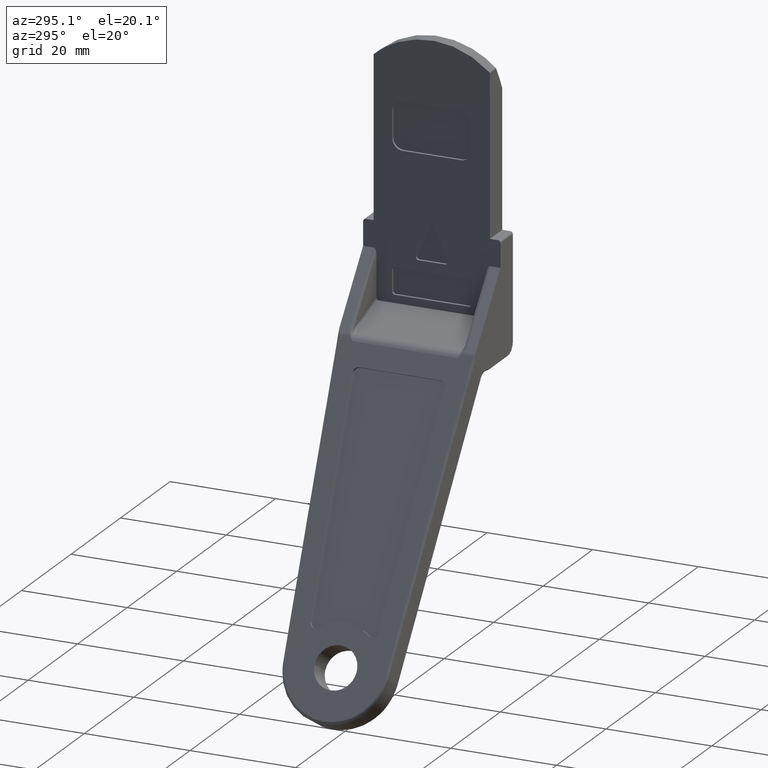
[diagram: clean part render]
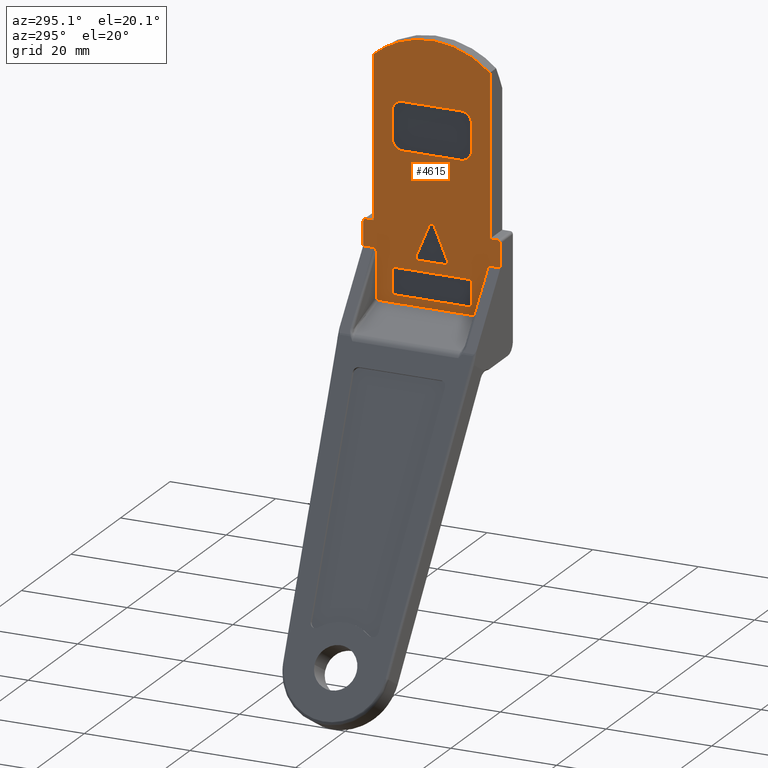
[diagram: same view with one face highlighted and labeled with its STEP entity id]
A machine part, auxiliary view. The second image highlights one B-rep face of the part: STEP entity #4615.
In plain terms, the highlighted face is a freeform B-spline surface patch.
Its self-contained STEP definition (entity closure, byte-faithful):
#1157=CARTESIAN_POINT('',(-5.000000000000091,-12.500000000000000,-18.0));
#1158=VERTEX_POINT('',#1157);
#1164=CARTESIAN_POINT('',(-5.000000000000091,-13.0,-18.500000000000000));
#1165=VERTEX_POINT('',#1164);
#1166=CARTESIAN_POINT('',(-5.000000000000091,-13.0,-18.500000000000000));
#1167=CARTESIAN_POINT('',(-5.000000000000091,-13.000000000000004,-18.000000000000007));
#1168=CARTESIAN_POINT('',(-5.000000000000091,-12.500000000000000,-18.0));
#1176=(BOUNDED_CURVE()B_SPLINE_CURVE(2,(#1166,#1167,#1168),.UNSPECIFIED.,.F.,.U.)CURVE()GEOMETRIC_REPRESENTATION_ITEM()QUASI_UNIFORM_CURVE()RATIONAL_B_SPLINE_CURVE((1.0,0.707106781186548,1.0))REPRESENTATION_ITEM(''));
#1177=EDGE_CURVE('',#1165,#1158,#1176,.T.);
#1218=CARTESIAN_POINT('',(-5.000000000000091,13.0,-18.500000000000000));
#1219=VERTEX_POINT('',#1218);
#1225=CARTESIAN_POINT('',(-5.000000000000091,12.500000000000000,-18.0));
#1226=VERTEX_POINT('',#1225);
#1227=CARTESIAN_POINT('',(-5.000000000000120,12.500000000000000,-18.0));
#1228=CARTESIAN_POINT('',(-5.000000000000121,13.000000000000004,-18.000000000000007));
#1229=CARTESIAN_POINT('',(-5.000000000000120,13.0,-18.500000000000000));
#1237=(BOUNDED_CURVE()B_SPLINE_CURVE(2,(#1227,#1228,#1229),.UNSPECIFIED.,.F.,.U.)CURVE()GEOMETRIC_REPRESENTATION_ITEM()QUASI_UNIFORM_CURVE()RATIONAL_B_SPLINE_CURVE((1.0,0.707106781186548,1.0))REPRESENTATION_ITEM(''));
#1238=EDGE_CURVE('',#1226,#1219,#1237,.T.);
#1587=CARTESIAN_POINT('',(-5.000000000000091,-10.500000000000000,-23.793043774218798));
#1588=VERTEX_POINT('',#1587);
#1589=CARTESIAN_POINT('',(-5.000000000000091,-11.0,-23.0));
#1590=VERTEX_POINT('',#1589);
#1591=CARTESIAN_POINT('',(-5.000000000000091,-10.500000000000000,-23.793043774218798));
#1592=CARTESIAN_POINT('',(-5.000000000000091,-10.500000035731727,-22.999999999999986));
#1593=CARTESIAN_POINT('',(-5.000000000000091,-11.0,-22.999999999999989));
#1601=(BOUNDED_CURVE()B_SPLINE_CURVE(2,(#1591,#1592,#1593),.UNSPECIFIED.,.F.,.U.)CURVE()GEOMETRIC_REPRESENTATION_ITEM()QUASI_UNIFORM_CURVE()RATIONAL_B_SPLINE_CURVE((1.0,0.707106806452695,1.0))REPRESENTATION_ITEM(''));
#1602=EDGE_CURVE('',#1588,#1590,#1601,.T.);
#1959=CARTESIAN_POINT('',(-5.000000000000091,11.0,-23.0));
#1960=VERTEX_POINT('',#1959);
#1961=CARTESIAN_POINT('',(-5.000000000000091,10.500000000000000,-23.793043774218798));
#1962=VERTEX_POINT('',#1961);
#1963=CARTESIAN_POINT('',(-5.000000000000091,11.0,-23.0));
#1964=CARTESIAN_POINT('',(-5.000000000000081,10.499999964268275,-23.000000116386634));
#1965=CARTESIAN_POINT('',(-5.000000000000091,10.500000000000000,-23.793043774218798));
#1973=(BOUNDED_CURVE()B_SPLINE_CURVE(2,(#1963,#1964,#1965),.UNSPECIFIED.,.F.,.U.)CURVE()GEOMETRIC_REPRESENTATION_ITEM()QUASI_UNIFORM_CURVE()RATIONAL_B_SPLINE_CURVE((1.0,0.707106807807688,1.0))REPRESENTATION_ITEM(''));
#1974=EDGE_CURVE('',#1960,#1962,#1973,.T.);
#2055=CARTESIAN_POINT('',(-5.000000000000091,10.500000000000000,-31.976007212626751));
#2056=VERTEX_POINT('',#2055);
#2064=CARTESIAN_POINT('',(-5.000000000000091,10.0,-32.500000000000000));
#2065=VERTEX_POINT('',#2064);
#2071=CARTESIAN_POINT('',(-5.000000000000091,10.500000000000000,-31.976007212626751));
#2072=CARTESIAN_POINT('',(-5.000000000000092,10.500000000000000,-32.500000000000071));
#2073=CARTESIAN_POINT('',(-5.000000000000091,10.0,-32.500000000000078));
#2081=(BOUNDED_CURVE()B_SPLINE_CURVE(2,(#2071,#2072,#2073),.UNSPECIFIED.,.F.,.U.)CURVE()GEOMETRIC_REPRESENTATION_ITEM()QUASI_UNIFORM_CURVE()RATIONAL_B_SPLINE_CURVE((1.0,0.707106781186548,1.0))REPRESENTATION_ITEM(''));
#2082=EDGE_CURVE('',#2056,#2065,#2081,.T.);
#2154=CARTESIAN_POINT('',(-5.000000000000091,-10.500000000000000,-31.976007212626751));
#2155=VERTEX_POINT('',#2154);
#2161=CARTESIAN_POINT('',(-5.000000000000091,-10.0,-32.500000000000000));
#2162=VERTEX_POINT('',#2161);
#2163=CARTESIAN_POINT('',(-5.000000000000091,-10.0,-32.500000000000000));
#2164=CARTESIAN_POINT('',(-5.000000000000091,-10.207106591745346,-32.500000116297173));
#2165=CARTESIAN_POINT('',(-5.000000000000091,-10.353553295872670,-32.346526165137057));
#2166=CARTESIAN_POINT('',(-5.000000000000091,-10.500000000000002,-32.193052213976969));
#2167=CARTESIAN_POINT('',(-5.000000000000091,-10.500000000000000,-31.976007212626751));
#2175=(BOUNDED_CURVE()B_SPLINE_CURVE(2,(#2163,#2164,#2165,#2166,#2167),.UNSPECIFIED.,.F.,.U.)B_SPLINE_CURVE_WITH_KNOTS((3,2,3),(0.0,0.500000000000000,1.0),.UNSPECIFIED.)CURVE()GEOMETRIC_REPRESENTATION_ITEM()RATIONAL_B_SPLINE_CURVE((1.0,0.923879481248866,1.0,0.923879481248866,1.0))REPRESENTATION_ITEM(''));
#2176=EDGE_CURVE('',#2162,#2155,#2175,.T.);
#2296=CARTESIAN_POINT('',(-5.000000000000120,7.500000000000000,-2.500000000000085));
#2297=VERTEX_POINT('',#2296);
#2298=CARTESIAN_POINT('',(-5.000000000000120,5.500000000000000,-4.500000000000090));
#2299=VERTEX_POINT('',#2298);
#2300=CARTESIAN_POINT('',(-5.000000000000120,7.500000000000000,-2.500000000000085));
#2301=CARTESIAN_POINT('',(-5.000000000000121,7.500000000000000,-4.500000000000085));
#2302=CARTESIAN_POINT('',(-5.000000000000120,5.500000000000000,-4.500000000000085));
#2310=(BOUNDED_CURVE()B_SPLINE_CURVE(2,(#2300,#2301,#2302),.UNSPECIFIED.,.F.,.U.)CURVE()GEOMETRIC_REPRESENTATION_ITEM()QUASI_UNIFORM_CURVE()RATIONAL_B_SPLINE_CURVE((1.0,0.707106781186548,1.0))REPRESENTATION_ITEM(''));
#2311=EDGE_CURVE('',#2297,#2299,#2310,.T.);
#2332=CARTESIAN_POINT('',(-5.000000000000120,-5.500000000000000,-4.500000000000090));
#2333=VERTEX_POINT('',#2332);
#2334=CARTESIAN_POINT('',(-5.000000000000120,-5.500000000000000,-4.500000000000090));
#2335=CARTESIAN_POINT('',(-5.000000000000120,5.500000000000000,-4.500000000000090));
#2336=QUASI_UNIFORM_CURVE('',1,(#2334,#2335),.UNSPECIFIED.,.F.,.U.);
#2337=EDGE_CURVE('',#2333,#2299,#2336,.T.);
#2363=CARTESIAN_POINT('',(-5.000000000000120,-7.500000000000000,-2.500000000000085));
#2364=VERTEX_POINT('',#2363);
#2365=CARTESIAN_POINT('',(-5.000000000000120,-5.500000000000000,-4.500000000000085));
#2366=CARTESIAN_POINT('',(-5.000000000000121,-7.500000000000000,-4.500000000000085));
#2367=CARTESIAN_POINT('',(-5.000000000000120,-7.500000000000000,-2.500000000000085));
#2375=(BOUNDED_CURVE()B_SPLINE_CURVE(2,(#2365,#2366,#2367),.UNSPECIFIED.,.F.,.U.)CURVE()GEOMETRIC_REPRESENTATION_ITEM()QUASI_UNIFORM_CURVE()RATIONAL_B_SPLINE_CURVE((1.0,0.707106781186548,1.0))REPRESENTATION_ITEM(''));
#2376=EDGE_CURVE('',#2333,#2364,#2375,.T.);
#2393=CARTESIAN_POINT('',(-5.000000000000120,-7.500000000000000,2.500000000000000));
#2394=VERTEX_POINT('',#2393);
#2395=CARTESIAN_POINT('',(-5.000000000000120,-7.500000000000000,2.500000000000000));
#2396=CARTESIAN_POINT('',(-5.000000000000120,-7.500000000000000,-2.500000000000085));
#2397=QUASI_UNIFORM_CURVE('',1,(#2395,#2396),.UNSPECIFIED.,.F.,.U.);
#2398=EDGE_CURVE('',#2394,#2364,#2397,.T.);
#2424=CARTESIAN_POINT('',(-5.000000000000120,-5.500000000000000,4.500000000000000));
#2425=VERTEX_POINT('',#2424);
#2426=CARTESIAN_POINT('',(-5.000000000000120,-7.500000000000000,2.500000000000000));
#2427=CARTESIAN_POINT('',(-5.000000000000121,-7.500000000000000,4.500000000000002));
#2428=CARTESIAN_POINT('',(-5.000000000000120,-5.500000000000000,4.500000000000001));
#2436=(BOUNDED_CURVE()B_SPLINE_CURVE(2,(#2426,#2427,#2428),.UNSPECIFIED.,.F.,.U.)CURVE()GEOMETRIC_REPRESENTATION_ITEM()QUASI_UNIFORM_CURVE()RATIONAL_B_SPLINE_CURVE((1.0,0.707106781186548,1.0))REPRESENTATION_ITEM(''));
#2437=EDGE_CURVE('',#2394,#2425,#2436,.T.);
#2454=CARTESIAN_POINT('',(-5.000000000000120,5.500000000000000,4.500000000000000));
#2455=VERTEX_POINT('',#2454);
#2456=CARTESIAN_POINT('',(-5.000000000000120,5.500000000000000,4.500000000000000));
#2457=CARTESIAN_POINT('',(-5.000000000000120,-5.500000000000000,4.500000000000000));
#2458=QUASI_UNIFORM_CURVE('',1,(#2456,#2457),.UNSPECIFIED.,.F.,.U.);
#2459=EDGE_CURVE('',#2455,#2425,#2458,.T.);
#2485=CARTESIAN_POINT('',(-5.000000000000120,7.500000000000000,2.500000000000000));
#2486=VERTEX_POINT('',#2485);
#2487=CARTESIAN_POINT('',(-5.000000000000120,5.500000000000000,4.500000000000001));
#2488=CARTESIAN_POINT('',(-5.000000000000121,7.500000000000000,4.500000000000002));
#2489=CARTESIAN_POINT('',(-5.000000000000120,7.500000000000000,2.500000000000000));
#2497=(BOUNDED_CURVE()B_SPLINE_CURVE(2,(#2487,#2488,#2489),.UNSPECIFIED.,.F.,.U.)CURVE()GEOMETRIC_REPRESENTATION_ITEM()QUASI_UNIFORM_CURVE()RATIONAL_B_SPLINE_CURVE((1.0,0.707106781186548,1.0))REPRESENTATION_ITEM(''));
#2498=EDGE_CURVE('',#2455,#2486,#2497,.T.);
#2515=CARTESIAN_POINT('',(-5.000000000000120,7.500000000000000,-2.500000000000085));
#2516=CARTESIAN_POINT('',(-5.000000000000120,7.500000000000000,2.500000000000000));
#2517=QUASI_UNIFORM_CURVE('',1,(#2515,#2516),.UNSPECIFIED.,.F.,.U.);
#2518=EDGE_CURVE('',#2297,#2486,#2517,.T.);
#2624=CARTESIAN_POINT('',(-5.000000000000120,-0.461538461364064,-17.307692307273751));
#2625=VERTEX_POINT('',#2624);
#2626=CARTESIAN_POINT('',(-5.000000000000120,0.461538999999988,-17.307692000000099));
#2627=VERTEX_POINT('',#2626);
#2628=CARTESIAN_POINT('',(-5.000000000000120,-0.461538461364063,-17.307692307273751));
#2629=CARTESIAN_POINT('',(-5.000000000000121,-0.333333343626608,-17.000000025489822));
#2630=CARTESIAN_POINT('',(-5.000000000000120,-0.000000038234729,-17.0));
#2631=CARTESIAN_POINT('',(-5.000000000000121,0.333333267157150,-16.999999974510189));
#2632=CARTESIAN_POINT('',(-5.000000000000120,0.461538999999988,-17.307692000000099));
#2640=(BOUNDED_CURVE()B_SPLINE_CURVE(2,(#2628,#2629,#2630,#2631,#2632),.UNSPECIFIED.,.F.,.U.)B_SPLINE_CURVE_WITH_KNOTS((3,2,3),(0.0,0.500000000000000,1.0),.UNSPECIFIED.)CURVE()GEOMETRIC_REPRESENTATION_ITEM()RATIONAL_B_SPLINE_CURVE((1.0,0.832050315798177,1.0,0.832050315798177,1.0))REPRESENTATION_ITEM(''));
#2641=EDGE_CURVE('',#2625,#2627,#2640,.T.);
#2662=CARTESIAN_POINT('',(-5.000000000000120,2.961538461364065,-23.307692307273850));
#2663=VERTEX_POINT('',#2662);
#2664=CARTESIAN_POINT('',(-5.000000000000120,2.961538461364065,-23.307692307273850));
#2665=CARTESIAN_POINT('',(-5.000000000000120,0.461538999999988,-17.307692000000099));
#2666=QUASI_UNIFORM_CURVE('',1,(#2664,#2665),.UNSPECIFIED.,.F.,.U.);
#2667=EDGE_CURVE('',#2663,#2627,#2666,.T.);
#2693=CARTESIAN_POINT('',(-5.000000000000120,2.500000000000000,-24.0));
#2694=VERTEX_POINT('',#2693);
#2695=CARTESIAN_POINT('',(-5.000000000000120,2.961538461364099,-23.307692307273840));
#2696=CARTESIAN_POINT('',(-5.000000000000120,3.064458415199518,-23.554700195848028));
#2697=CARTESIAN_POINT('',(-5.000000000000120,2.916025147294657,-23.777350097924010));
#2698=CARTESIAN_POINT('',(-5.000000000000120,2.767591879389797,-24.000000000000004));
#2699=CARTESIAN_POINT('',(-5.000000000000120,2.500000000000000,-24.0));
#2707=(BOUNDED_CURVE()B_SPLINE_CURVE(2,(#2695,#2696,#2697,#2698,#2699),.UNSPECIFIED.,.F.,.U.)B_SPLINE_CURVE_WITH_KNOTS((3,2,3),(0.0,0.500000000000000,1.0),.UNSPECIFIED.)CURVE()GEOMETRIC_REPRESENTATION_ITEM()RATIONAL_B_SPLINE_CURVE((1.0,0.881674598660987,1.0,0.881674598660987,1.0))REPRESENTATION_ITEM(''));
#2708=EDGE_CURVE('',#2663,#2694,#2707,.T.);
#2725=CARTESIAN_POINT('',(-5.000000000000120,-2.500000000000000,-24.0));
#2726=VERTEX_POINT('',#2725);
#2727=CARTESIAN_POINT('',(-5.000000000000120,-2.500000000000000,-24.0));
#2728=CARTESIAN_POINT('',(-5.000000000000120,2.500000000000000,-24.0));
#2729=QUASI_UNIFORM_CURVE('',1,(#2727,#2728),.UNSPECIFIED.,.F.,.U.);
#2730=EDGE_CURVE('',#2726,#2694,#2729,.T.);
#2756=CARTESIAN_POINT('',(-5.000000000000120,-2.961538461364080,-23.307692307273850));
#2757=VERTEX_POINT('',#2756);
#2758=CARTESIAN_POINT('',(-5.000000000000120,-2.500000000000000,-24.0));
#2759=CARTESIAN_POINT('',(-5.000000000000120,-2.767591879389795,-23.999999999999996));
#2760=CARTESIAN_POINT('',(-5.000000000000120,-2.916025147294656,-23.777350097924010));
#2761=CARTESIAN_POINT('',(-5.000000000000120,-3.064458415199516,-23.554700195848032));
#2762=CARTESIAN_POINT('',(-5.000000000000120,-2.961538461364101,-23.307692307273840));
#2770=(BOUNDED_CURVE()B_SPLINE_CURVE(2,(#2758,#2759,#2760,#2761,#2762),.UNSPECIFIED.,.F.,.U.)B_SPLINE_CURVE_WITH_KNOTS((3,2,3),(0.0,0.500000000000000,1.0),.UNSPECIFIED.)CURVE()GEOMETRIC_REPRESENTATION_ITEM()RATIONAL_B_SPLINE_CURVE((1.0,0.881674598660988,1.0,0.881674598660988,1.0))REPRESENTATION_ITEM(''));
#2771=EDGE_CURVE('',#2726,#2757,#2770,.T.);
#2788=CARTESIAN_POINT('',(-5.000000000000120,-0.461538461364064,-17.307692307273751));
#2789=CARTESIAN_POINT('',(-5.000000000000120,-2.961538461364080,-23.307692307273850));
#2790=QUASI_UNIFORM_CURVE('',1,(#2788,#2789),.UNSPECIFIED.,.F.,.U.);
#2791=EDGE_CURVE('',#2625,#2757,#2790,.T.);
#2909=CARTESIAN_POINT('',(-5.000000000000120,-7.500000000000000,-26.500000000000000));
#2910=VERTEX_POINT('',#2909);
#2911=CARTESIAN_POINT('',(-5.000000000000120,-7.0,-26.0));
#2912=VERTEX_POINT('',#2911);
#2913=CARTESIAN_POINT('',(-5.000000000000120,-7.500000000000000,-26.500000000000000));
#2914=CARTESIAN_POINT('',(-5.000000000000121,-7.500000000000000,-26.000000000000004));
#2915=CARTESIAN_POINT('',(-5.000000000000120,-7.0,-26.0));
#2923=(BOUNDED_CURVE()B_SPLINE_CURVE(2,(#2913,#2914,#2915),.UNSPECIFIED.,.F.,.U.)CURVE()GEOMETRIC_REPRESENTATION_ITEM()QUASI_UNIFORM_CURVE()RATIONAL_B_SPLINE_CURVE((1.0,0.707106781186548,1.0))REPRESENTATION_ITEM(''));
#2924=EDGE_CURVE('',#2910,#2912,#2923,.T.);
#2945=CARTESIAN_POINT('',(-5.000000000000120,-7.500000000000000,-30.500000000000000));
#2946=VERTEX_POINT('',#2945);
#2947=CARTESIAN_POINT('',(-5.000000000000120,-7.500000000000000,-30.500000000000000));
#2948=CARTESIAN_POINT('',(-5.000000000000120,-7.500000000000000,-26.500000000000000));
#2949=QUASI_UNIFORM_CURVE('',1,(#2947,#2948),.UNSPECIFIED.,.F.,.U.);
#2950=EDGE_CURVE('',#2946,#2910,#2949,.T.);
#2976=CARTESIAN_POINT('',(-5.000000000000120,-7.0,-31.0));
#2977=VERTEX_POINT('',#2976);
#2978=CARTESIAN_POINT('',(-5.000000000000120,-7.0,-31.0));
#2979=CARTESIAN_POINT('',(-5.000000000000121,-7.500000000000000,-31.000000000000007));
#2980=CARTESIAN_POINT('',(-5.000000000000120,-7.500000000000000,-30.500000000000000));
#2988=(BOUNDED_CURVE()B_SPLINE_CURVE(2,(#2978,#2979,#2980),.UNSPECIFIED.,.F.,.U.)CURVE()GEOMETRIC_REPRESENTATION_ITEM()QUASI_UNIFORM_CURVE()RATIONAL_B_SPLINE_CURVE((1.0,0.707106781186548,1.0))REPRESENTATION_ITEM(''));
#2989=EDGE_CURVE('',#2977,#2946,#2988,.T.);
#3006=CARTESIAN_POINT('',(-5.000000000000120,7.0,-31.0));
#3007=VERTEX_POINT('',#3006);
#3008=CARTESIAN_POINT('',(-5.000000000000120,7.0,-31.0));
#3009=CARTESIAN_POINT('',(-5.000000000000120,-7.0,-31.0));
#3010=QUASI_UNIFORM_CURVE('',1,(#3008,#3009),.UNSPECIFIED.,.F.,.U.);
#3011=EDGE_CURVE('',#3007,#2977,#3010,.T.);
#3037=CARTESIAN_POINT('',(-5.000000000000120,7.500000000000000,-30.500000000000000));
#3038=VERTEX_POINT('',#3037);
#3039=CARTESIAN_POINT('',(-5.000000000000120,7.500000000000000,-30.500000000000000));
#3040=CARTESIAN_POINT('',(-5.000000000000121,7.500000000000000,-31.000000000000007));
#3041=CARTESIAN_POINT('',(-5.000000000000120,7.0,-31.0));
#3049=(BOUNDED_CURVE()B_SPLINE_CURVE(2,(#3039,#3040,#3041),.UNSPECIFIED.,.F.,.U.)CURVE()GEOMETRIC_REPRESENTATION_ITEM()QUASI_UNIFORM_CURVE()RATIONAL_B_SPLINE_CURVE((1.0,0.707106781186548,1.0))REPRESENTATION_ITEM(''));
#3050=EDGE_CURVE('',#3038,#3007,#3049,.T.);
#3067=CARTESIAN_POINT('',(-5.000000000000120,7.500000000000000,-26.500000000000000));
#3068=VERTEX_POINT('',#3067);
#3069=CARTESIAN_POINT('',(-5.000000000000120,7.500000000000000,-26.500000000000000));
#3070=CARTESIAN_POINT('',(-5.000000000000120,7.500000000000000,-30.500000000000000));
#3071=QUASI_UNIFORM_CURVE('',1,(#3069,#3070),.UNSPECIFIED.,.F.,.U.);
#3072=EDGE_CURVE('',#3068,#3038,#3071,.T.);
#3098=CARTESIAN_POINT('',(-5.000000000000120,7.0,-26.0));
#3099=VERTEX_POINT('',#3098);
#3100=CARTESIAN_POINT('',(-5.000000000000120,7.0,-26.0));
#3101=CARTESIAN_POINT('',(-5.000000000000121,7.500000000000000,-26.000000000000004));
#3102=CARTESIAN_POINT('',(-5.000000000000120,7.500000000000000,-26.500000000000000));
#3110=(BOUNDED_CURVE()B_SPLINE_CURVE(2,(#3100,#3101,#3102),.UNSPECIFIED.,.F.,.U.)CURVE()GEOMETRIC_REPRESENTATION_ITEM()QUASI_UNIFORM_CURVE()RATIONAL_B_SPLINE_CURVE((1.0,0.707106781186548,1.0))REPRESENTATION_ITEM(''));
#3111=EDGE_CURVE('',#3099,#3068,#3110,.T.);
#3128=CARTESIAN_POINT('',(-5.000000000000120,-7.0,-26.0));
#3129=CARTESIAN_POINT('',(-5.000000000000120,7.0,-26.0));
#3130=QUASI_UNIFORM_CURVE('',1,(#3128,#3129),.UNSPECIFIED.,.F.,.U.);
#3131=EDGE_CURVE('',#2912,#3099,#3130,.T.);
#4032=CARTESIAN_POINT('',(-5.000000000000091,10.0,-32.500000000000000));
#4033=CARTESIAN_POINT('',(-5.000000000000091,-10.0,-32.500000000000000));
#4034=QUASI_UNIFORM_CURVE('',1,(#4032,#4033),.UNSPECIFIED.,.F.,.U.);
#4035=EDGE_CURVE('',#2065,#2162,#4034,.T.);
#4048=CARTESIAN_POINT('',(-5.000000000000091,-10.500000000000000,-23.793043774218798));
#4049=CARTESIAN_POINT('',(-5.000000000000091,-10.500000000000000,-31.976007212626751));
#4050=QUASI_UNIFORM_CURVE('',1,(#4048,#4049),.UNSPECIFIED.,.F.,.U.);
#4051=EDGE_CURVE('',#1588,#2155,#4050,.T.);
#4061=CARTESIAN_POINT('',(-5.000000000000091,10.500000000000000,-23.793043774218798));
#4062=CARTESIAN_POINT('',(-5.000000000000091,10.500000000000000,-31.976007212626751));
#4063=QUASI_UNIFORM_CURVE('',1,(#4061,#4062),.UNSPECIFIED.,.F.,.U.);
#4064=EDGE_CURVE('',#1962,#2056,#4063,.T.);
#4084=CARTESIAN_POINT('',(-5.000000000000120,11.0,-18.0));
#4085=VERTEX_POINT('',#4084);
#4091=CARTESIAN_POINT('',(-5.000000000000120,11.0,12.298373876248821));
#4092=VERTEX_POINT('',#4091);
#4093=CARTESIAN_POINT('',(-5.000000000000120,11.0,12.298373876248821));
#4094=CARTESIAN_POINT('',(-5.000000000000120,11.0,-18.0));
#4095=QUASI_UNIFORM_CURVE('',1,(#4093,#4094),.UNSPECIFIED.,.F.,.U.);
#4096=EDGE_CURVE('',#4092,#4085,#4095,.T.);
#4112=CARTESIAN_POINT('',(-5.000000000000120,-11.0,12.298373876248821));
#4113=VERTEX_POINT('',#4112);
#4119=CARTESIAN_POINT('',(-5.000000000000120,-11.0,-18.0));
#4120=VERTEX_POINT('',#4119);
#4121=CARTESIAN_POINT('',(-5.000000000000120,-11.0,-18.0));
#4122=CARTESIAN_POINT('',(-5.000000000000120,-11.0,12.298373876248821));
#4123=QUASI_UNIFORM_CURVE('',1,(#4121,#4122),.UNSPECIFIED.,.F.,.U.);
#4124=EDGE_CURVE('',#4120,#4113,#4123,.T.);
#4146=CARTESIAN_POINT('',(-5.000000000000091,-12.500000000000000,-18.0));
#4147=CARTESIAN_POINT('',(-5.000000000000120,-11.0,-18.0));
#4148=QUASI_UNIFORM_CURVE('',1,(#4146,#4147),.UNSPECIFIED.,.F.,.U.);
#4149=EDGE_CURVE('',#1158,#4120,#4148,.T.);
#4172=CARTESIAN_POINT('',(-5.000000000000120,11.0,-18.0));
#4173=CARTESIAN_POINT('',(-5.000000000000091,12.500000000000000,-18.0));
#4174=QUASI_UNIFORM_CURVE('',1,(#4172,#4173),.UNSPECIFIED.,.F.,.U.);
#4175=EDGE_CURVE('',#4085,#1226,#4174,.T.);
#4197=CARTESIAN_POINT('',(-5.000000000000120,-11.000000000000011,12.298373876248840));
#4198=CARTESIAN_POINT('',(-5.000000000000120,-1.734723E-015,22.137072977247936));
#4199=CARTESIAN_POINT('',(-5.000000000000120,11.000000000000011,12.298373876248840));
#4207=(BOUNDED_CURVE()B_SPLINE_CURVE(2,(#4197,#4198,#4199),.UNSPECIFIED.,.F.,.U.)CURVE()GEOMETRIC_REPRESENTATION_ITEM()QUASI_UNIFORM_CURVE()RATIONAL_B_SPLINE_CURVE((1.0,0.745355992499929,1.0))REPRESENTATION_ITEM(''));
#4208=EDGE_CURVE('',#4113,#4092,#4207,.T.);
#4225=CARTESIAN_POINT('',(-5.000000000000091,-13.0,-23.0));
#4226=VERTEX_POINT('',#4225);
#4232=CARTESIAN_POINT('',(-5.000000000000091,-13.0,-23.0));
#4233=CARTESIAN_POINT('',(-5.000000000000091,-11.0,-23.0));
#4234=QUASI_UNIFORM_CURVE('',1,(#4232,#4233),.UNSPECIFIED.,.F.,.U.);
#4235=EDGE_CURVE('',#4226,#1590,#4234,.T.);
#4389=CARTESIAN_POINT('',(-5.000000000000091,13.0,-23.0));
#4390=VERTEX_POINT('',#4389);
#4396=CARTESIAN_POINT('',(-5.000000000000091,13.0,-23.0));
#4397=CARTESIAN_POINT('',(-5.000000000000091,13.0,-18.500000000000000));
#4398=QUASI_UNIFORM_CURVE('',1,(#4396,#4397),.UNSPECIFIED.,.F.,.U.);
#4399=EDGE_CURVE('',#4390,#1219,#4398,.T.);
#4426=CARTESIAN_POINT('',(-5.000000000000091,-13.0,-23.0));
#4427=CARTESIAN_POINT('',(-5.000000000000091,-13.0,-18.500000000000000));
#4428=QUASI_UNIFORM_CURVE('',1,(#4426,#4427),.UNSPECIFIED.,.F.,.U.);
#4429=EDGE_CURVE('',#4226,#1165,#4428,.T.);
#4469=CARTESIAN_POINT('',(-5.000000000000091,11.0,-23.0));
#4470=CARTESIAN_POINT('',(-5.000000000000091,13.0,-23.0));
#4471=QUASI_UNIFORM_CURVE('',1,(#4469,#4470),.UNSPECIFIED.,.F.,.U.);
#4472=EDGE_CURVE('',#1960,#4390,#4471,.T.);
#4562=CARTESIAN_POINT('',(-5.000000000000091,-14.298699949606959,-34.947549905028481));
#4563=CARTESIAN_POINT('',(-5.000000000000091,-14.298699949606959,18.947551219310810));
#4564=CARTESIAN_POINT('',(-5.000000000000091,14.298700646981301,-34.947549905028481));
#4565=CARTESIAN_POINT('',(-5.000000000000091,14.298700646981301,18.947551219310810));
#4566=B_SPLINE_SURFACE_WITH_KNOTS('',1,1,((#4562,#4564),(#4563,#4565)),.UNSPECIFIED.,.F.,.F.,.U.,(2,2),(2,2),(0.0,53.895101124339291),(0.0,28.597400596588258),.UNSPECIFIED.);
#4567=ORIENTED_EDGE('',*,*,#4175,.T.);
#4568=ORIENTED_EDGE('',*,*,#1238,.T.);
#4569=ORIENTED_EDGE('',*,*,#4399,.F.);
#4570=ORIENTED_EDGE('',*,*,#4472,.F.);
#4571=ORIENTED_EDGE('',*,*,#1974,.T.);
#4572=ORIENTED_EDGE('',*,*,#4064,.T.);
#4573=ORIENTED_EDGE('',*,*,#2082,.T.);
#4574=ORIENTED_EDGE('',*,*,#4035,.T.);
#4575=ORIENTED_EDGE('',*,*,#2176,.T.);
#4576=ORIENTED_EDGE('',*,*,#4051,.F.);
#4577=ORIENTED_EDGE('',*,*,#1602,.T.);
#4578=ORIENTED_EDGE('',*,*,#4235,.F.);
#4579=ORIENTED_EDGE('',*,*,#4429,.T.);
#4580=ORIENTED_EDGE('',*,*,#1177,.T.);
#4581=ORIENTED_EDGE('',*,*,#4149,.T.);
#4582=ORIENTED_EDGE('',*,*,#4124,.T.);
#4583=ORIENTED_EDGE('',*,*,#4208,.T.);
#4584=ORIENTED_EDGE('',*,*,#4096,.T.);
#4585=EDGE_LOOP('',(#4567,#4568,#4569,#4570,#4571,#4572,#4573,#4574,#4575,#4576,#4577,#4578,#4579,#4580,#4581,#4582,#4583,#4584));
#4586=FACE_OUTER_BOUND('',#4585,.T.);
#4587=ORIENTED_EDGE('',*,*,#3131,.F.);
#4588=ORIENTED_EDGE('',*,*,#2924,.F.);
#4589=ORIENTED_EDGE('',*,*,#2950,.F.);
#4590=ORIENTED_EDGE('',*,*,#2989,.F.);
#4591=ORIENTED_EDGE('',*,*,#3011,.F.);
#4592=ORIENTED_EDGE('',*,*,#3050,.F.);
#4593=ORIENTED_EDGE('',*,*,#3072,.F.);
#4594=ORIENTED_EDGE('',*,*,#3111,.F.);
#4595=EDGE_LOOP('',(#4587,#4588,#4589,#4590,#4591,#4592,#4593,#4594));
#4596=FACE_BOUND('',#4595,.T.);
#4597=ORIENTED_EDGE('',*,*,#2641,.F.);
#4598=ORIENTED_EDGE('',*,*,#2791,.T.);
#4599=ORIENTED_EDGE('',*,*,#2771,.F.);
#4600=ORIENTED_EDGE('',*,*,#2730,.T.);
#4601=ORIENTED_EDGE('',*,*,#2708,.F.);
#4602=ORIENTED_EDGE('',*,*,#2667,.T.);
#4603=EDGE_LOOP('',(#4597,#4598,#4599,#4600,#4601,#4602));
#4604=FACE_BOUND('',#4603,.T.);
#4605=ORIENTED_EDGE('',*,*,#2311,.F.);
#4606=ORIENTED_EDGE('',*,*,#2518,.T.);
#4607=ORIENTED_EDGE('',*,*,#2498,.F.);
#4608=ORIENTED_EDGE('',*,*,#2459,.T.);
#4609=ORIENTED_EDGE('',*,*,#2437,.F.);
#4610=ORIENTED_EDGE('',*,*,#2398,.T.);
#4611=ORIENTED_EDGE('',*,*,#2376,.F.);
#4612=ORIENTED_EDGE('',*,*,#2337,.T.);
#4613=EDGE_LOOP('',(#4605,#4606,#4607,#4608,#4609,#4610,#4611,#4612));
#4614=FACE_BOUND('',#4613,.T.);
#4615=ADVANCED_FACE('',(#4586,#4596,#4604,#4614),#4566,.T.);